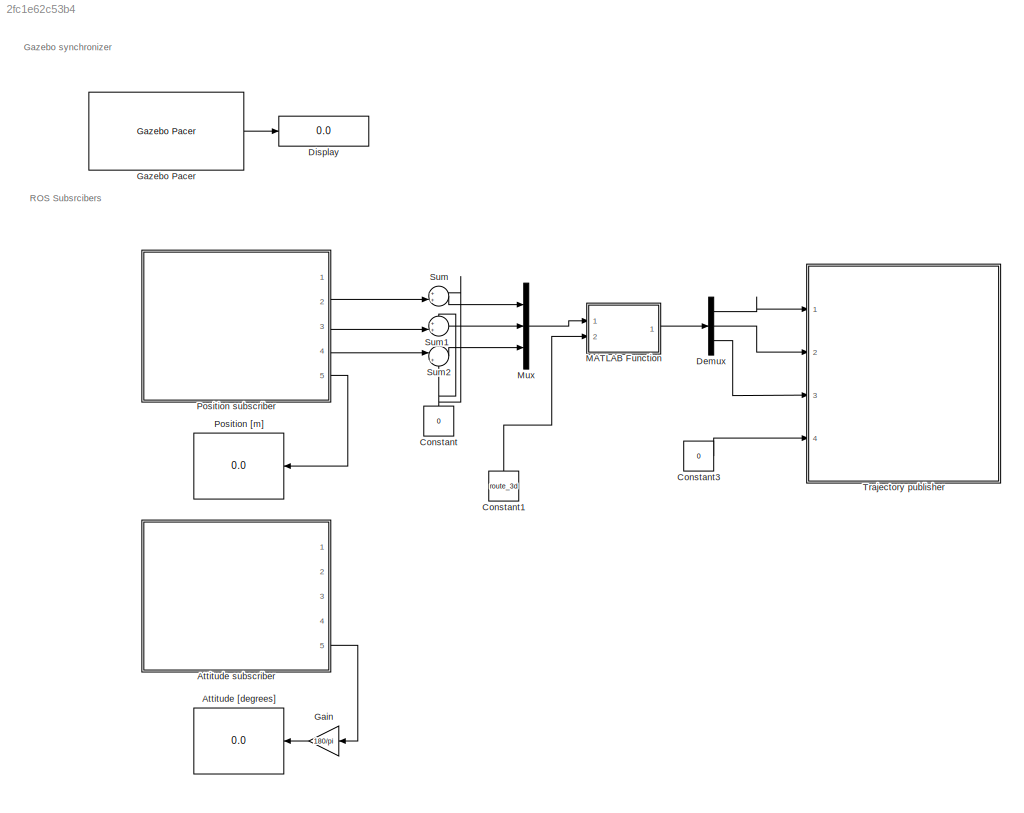
MODEL slx_2fc1e62c53b4
KIND model
CONFIG AbsTol = auto
CONFIG EnableMultiTasking = off
CONFIG FixedStep = FIXED_STEP_SIZE
CONFIG MaxStep = auto
CONFIG MinStep = auto
CONFIG RelTol = 1e-3
CONFIG SampleTimeConstraint = Unconstrained
CONFIG Solver = FixedStepAuto
CONFIG SolverName = FixedStepAuto
CONFIG StartTime = 0.0
CONFIG StopTime = Inf
BLOCK [Display] Attitude [degrees]
  Decimation = 1
  Ports = [1]
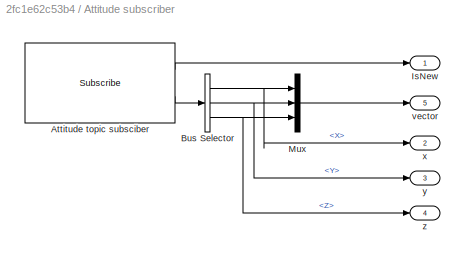
BLOCK [SubSystem] Attitude subscriber
  Ports = [0, 5]
  RequestExecContextInheritance = off
BLOCK [Reference] Attitude subscriber/Attitude topic subsciber  REF=robotlib/Subscribe
  Ports = [0, 2]
  SourceBlock = robotlib/Subscribe
  SourceProductBaseCode = RR
  SourceProductName = ROS Toolbox
  SourceType = ROS Subscribe
BLOCK [BusSelector] Attitude subscriber/Bus Selector
  OutputAsBus = off
  OutputSignals = X,Y,Z
  Ports = [1, 3]
BLOCK [Outport] Attitude subscriber/IsNew
  IconDisplay = Port number
BLOCK [Mux] Attitude subscriber/Mux
  DisplayOption = bar
  Inputs = 3
  Ports = [3, 1]
BLOCK [Outport] Attitude subscriber/vector
  IconDisplay = Port number
  Port = 5
BLOCK [Outport] Attitude subscriber/x
  IconDisplay = Port number
  Port = 2
BLOCK [Outport] Attitude subscriber/y
  IconDisplay = Port number
  Port = 3
BLOCK [Outport] Attitude subscriber/z
  IconDisplay = Port number
  Port = 4
BLOCK [Constant] Constant
  Value = 0
BLOCK [Constant] Constant1
  Value = route_3d
BLOCK [Constant] Constant3
  Value = 0
BLOCK [Demux] Demux
  DisplayOption = bar
  Outputs = 3
  Ports = [1, 3]
BLOCK [Display] Display
  Decimation = 1
  Ports = [1]
BLOCK [Gain] Gain
  Gain = 180/pi
  OutDataTypeStr = Inherit: Inherit via internal rule
  ParamDataTypeStr = Inherit: Inherit via internal rule
  SaturateOnIntegerOverflow = off
BLOCK [Reference] Gazebo Pacer  REF=robotgazebolib/Gazebo Pacer
  Ports = [0, 1]
  SourceBlock = robotgazebolib/Gazebo Pacer
  SourceProductBaseCode = RO
  SourceProductName = Robotics System Toolbox
  SourceType = Gazebo Pacer
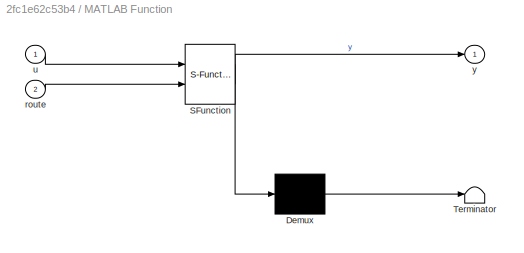
BLOCK [SubSystem] MATLAB Function
  ErrorFcn = Stateflow.Translate.translate
  MinAlgLoopOccurrences = on
  PermitHierarchicalResolution = ExplicitOnly
  Ports = [2, 1]
  RequestExecContextInheritance = off
  SFBlockType = MATLAB Function
  TreatAsAtomicUnit = on
BLOCK [Demux] MATLAB Function/ Demux 
  Outputs = 1
  Ports = [1, 1]
BLOCK [S-Function] MATLAB Function/ SFunction 
  EnableBusSupport = on
  FunctionName = sf_sfun
  PortCounts = [2 2]
  Ports = [2, 2]
  SFcnIsStateOwnerBlock = off
  SFunctionDeploymentMode = off
  Tag = Stateflow S-Function 2
BLOCK [Terminator] MATLAB Function/ Terminator 
BLOCK [Inport] MATLAB Function/route
  IconDisplay = Port number
  Port = 2
BLOCK [Inport] MATLAB Function/u
  IconDisplay = Port number
BLOCK [Outport] MATLAB Function/y
  IconDisplay = Port number
BLOCK [Mux] Mux
  DisplayOption = bar
  Inputs = 3
  Ports = [3, 1]
BLOCK [Display] Position [m]
  Decimation = 1
  Ports = [1]
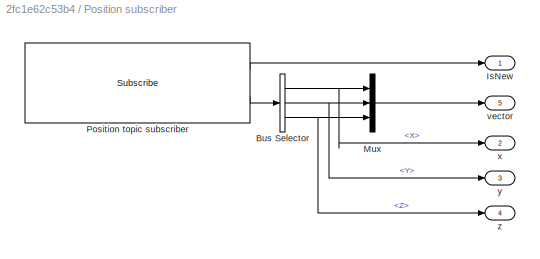
BLOCK [SubSystem] Position subscriber
  Ports = [0, 5]
  RequestExecContextInheritance = off
BLOCK [BusSelector] Position subscriber/Bus Selector
  OutputAsBus = off
  OutputSignals = Point.X,Point.Y,Point.Z
  Ports = [1, 3]
BLOCK [Outport] Position subscriber/IsNew
  IconDisplay = Port number
BLOCK [Mux] Position subscriber/Mux
  DisplayOption = bar
  Inputs = 3
  Ports = [3, 1]
BLOCK [Reference] Position subscriber/Position topic subscriber  REF=robotlib/Subscribe
  Ports = [0, 2]
  SourceBlock = robotlib/Subscribe
  SourceProductBaseCode = RR
  SourceProductName = ROS Toolbox
  SourceType = ROS Subscribe
BLOCK [Outport] Position subscriber/vector
  IconDisplay = Port number
  Port = 5
BLOCK [Outport] Position subscriber/x
  IconDisplay = Port number
  Port = 2
BLOCK [Outport] Position subscriber/y
  IconDisplay = Port number
  Port = 3
BLOCK [Outport] Position subscriber/z
  IconDisplay = Port number
  Port = 4
BLOCK [Sum] Sum
  IconShape = round
  InputSameDT = off
  Inputs = ++|
  OutDataTypeStr = Inherit: Inherit via internal rule
  Ports = [2, 1]
  SaturateOnIntegerOverflow = off
BLOCK [Sum] Sum1
  IconShape = round
  InputSameDT = off
  Inputs = ++|
  OutDataTypeStr = Inherit: Inherit via internal rule
  Ports = [2, 1]
  SaturateOnIntegerOverflow = off
BLOCK [Sum] Sum2
  IconShape = round
  InputSameDT = off
  Inputs = |++
  OutDataTypeStr = Inherit: Inherit via internal rule
  Ports = [2, 1]
  SaturateOnIntegerOverflow = off
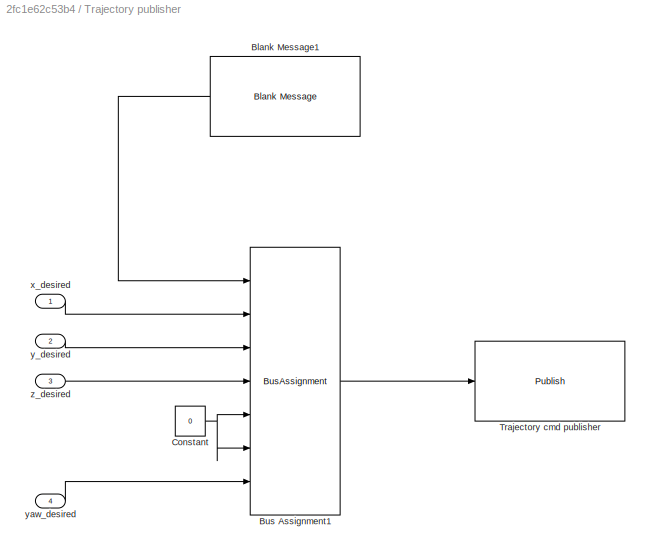
BLOCK [SubSystem] Trajectory publisher
  Ports = [4]
  RequestExecContextInheritance = off
BLOCK [Reference] Trajectory publisher/Blank Message1  REF=robotlib/Blank Message
  Ports = [0, 1]
  SourceBlock = robotlib/Blank Message
  SourceProductBaseCode = RR
  SourceProductName = ROS Toolbox
  SourceType = ROS Blank Message
BLOCK [BusAssignment] Trajectory publisher/Bus Assignment1
  AssignedSignals = Linear.X,Linear.Y,Linear.Z,Angular.X,Angular.Y,Angular.Z
  Ports = [7, 1]
BLOCK [Constant] Trajectory publisher/Constant
  Value = 0
BLOCK [Reference] Trajectory publisher/Trajectory cmd publisher  REF=robotlib/Publish
  Ports = [1]
  SourceBlock = robotlib/Publish
  SourceProductBaseCode = RR
  SourceProductName = ROS Toolbox
  SourceType = ROS Publish
BLOCK [Inport] Trajectory publisher/x_desired
  IconDisplay = Port number
BLOCK [Inport] Trajectory publisher/y_desired
  IconDisplay = Port number
  Port = 2
BLOCK [Inport] Trajectory publisher/yaw_desired
  IconDisplay = Port number
  Port = 4
BLOCK [Inport] Trajectory publisher/z_desired
  IconDisplay = Port number
  Port = 3
ANNOTATION (root): Gazebo synchronizer
ANNOTATION (root): ROS Subsrcibers
LINE Attitude subscriber/Attitude topic subsciber:1 -> Attitude subscriber/IsNew:1
LINE Attitude subscriber/Attitude topic subsciber:2 -> Attitude subscriber/Bus Selector:1
NET Attitude subscriber/Bus Selector:1 -> Attitude subscriber/Mux:1, Attitude subscriber/x:1
NET Attitude subscriber/Bus Selector:2 -> Attitude subscriber/Mux:2, Attitude subscriber/y:1
NET Attitude subscriber/Bus Selector:3 -> Attitude subscriber/Mux:3, Attitude subscriber/z:1
LINE Attitude subscriber/Mux:1 -> Attitude subscriber/vector:1
LINE Attitude subscriber:5 -> Gain:1
LINE Constant1:1 -> MATLAB Function:2
LINE Constant3:1 -> Trajectory publisher:4
NET Constant:1 -> Sum1:1, Sum2:2, Sum:1
LINE Demux:1 -> Trajectory publisher:1
LINE Demux:2 -> Trajectory publisher:2
LINE Demux:3 -> Trajectory publisher:3
LINE Gain:1 -> Attitude [degrees]:1
LINE Gazebo Pacer:1 -> Display:1
LINE MATLAB Function:1 -> Demux:1
LINE Mux:1 -> MATLAB Function:1
NET Position subscriber/Bus Selector:1 -> Position subscriber/Mux:1, Position subscriber/x:1
NET Position subscriber/Bus Selector:2 -> Position subscriber/Mux:2, Position subscriber/y:1
NET Position subscriber/Bus Selector:3 -> Position subscriber/Mux:3, Position subscriber/z:1
LINE Position subscriber/Mux:1 -> Position subscriber/vector:1
LINE Position subscriber/Position topic subscriber:1 -> Position subscriber/IsNew:1
LINE Position subscriber/Position topic subscriber:2 -> Position subscriber/Bus Selector:1
LINE Position subscriber:2 -> Sum:2
LINE Position subscriber:3 -> Sum1:2
LINE Position subscriber:4 -> Sum2:1
LINE Position subscriber:5 -> Position [m]:1
LINE Sum1:1 -> Mux:2
LINE Sum2:1 -> Mux:3
LINE Sum:1 -> Mux:1
LINE Trajectory publisher/Blank Message1:1 -> Trajectory publisher/Bus Assignment1:1
LINE Trajectory publisher/Bus Assignment1:1 -> Trajectory publisher/Trajectory cmd publisher:1
NET Trajectory publisher/Constant:1 -> Trajectory publisher/Bus Assignment1:5, Trajectory publisher/Bus Assignment1:6
LINE Trajectory publisher/x_desired:1 -> Trajectory publisher/Bus Assignment1:2
LINE Trajectory publisher/y_desired:1 -> Trajectory publisher/Bus Assignment1:3
LINE Trajectory publisher/yaw_desired:1 -> Trajectory publisher/Bus Assignment1:7
LINE Trajectory publisher/z_desired:1 -> Trajectory publisher/Bus Assignment1:4
note: NET lines group one-source signal fan-out (src -> all destinations, sorted); 1:1 wires keep LINE
CHART MATLAB Function states=1 transitions=1
  STATE_LABEL 'eML_blk_kernel()'
  STATE_LABEL "SCRIPT:\nfunction y = fcn(u, route)\n\npersistent count;\n\nif (isempty(count))\n    count = 0;\nend\n\n% route = [0, 0, 1; 3, 0, 2; -1, 2, 1; 1, -2, 1]';\n\nidx = mod(count,length(route)) + 1;\n\nif (length(route) == count)\n    % Do nothing\nelse\n    if sqrt((route(:,idx)-u).^2) < 0.1\n        count = count + 1;\n        idx = mod(count,length(route)) + 1;\n    end\nend\n\n\ny = route(:, idx);\n\n"
